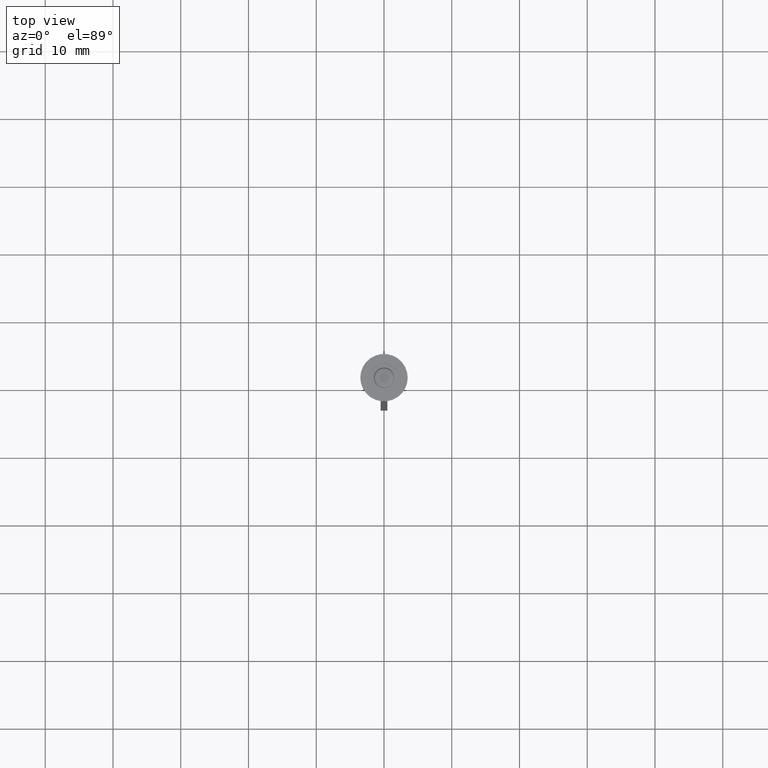
[diagram: clean part render]
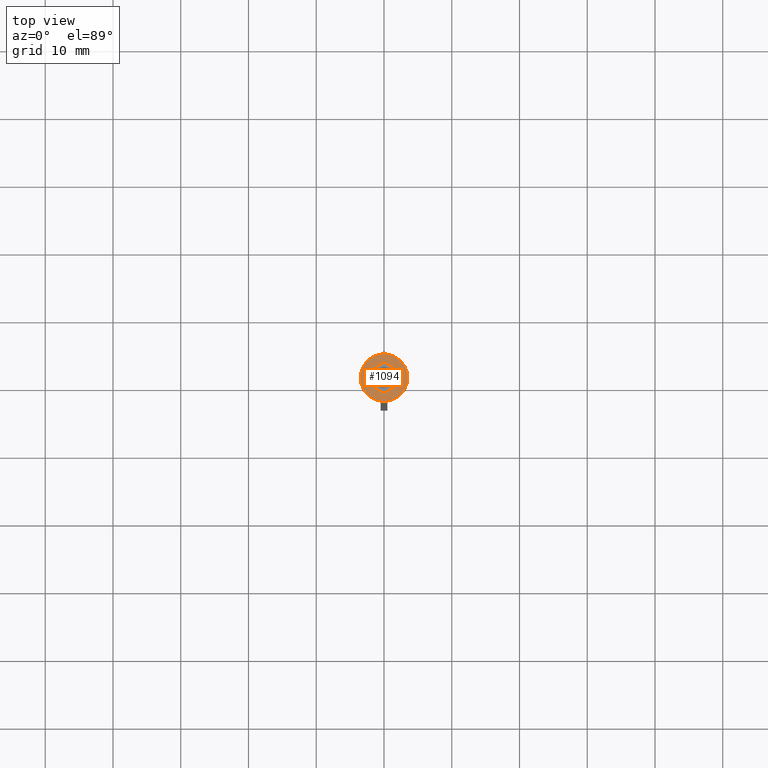
[diagram: same view with one face highlighted and labeled with its STEP entity id]
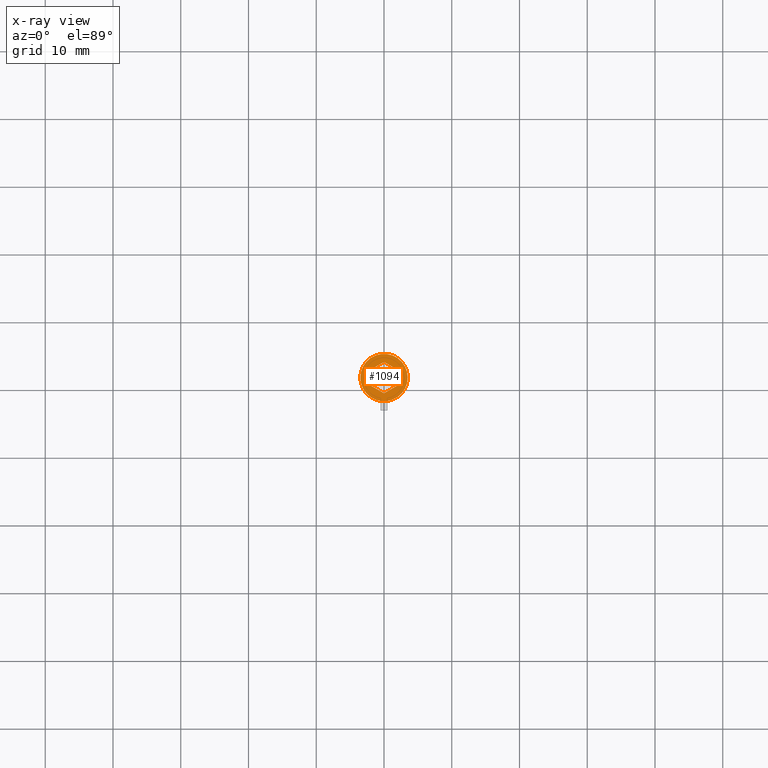
[diagram: x-ray of the same camera — body ghosted, the highlighted face saturated]
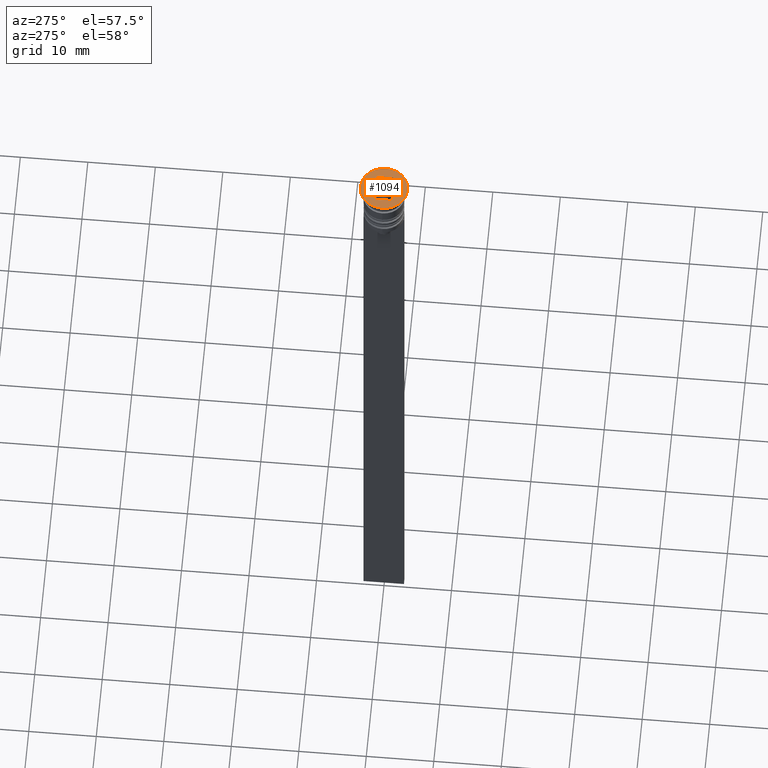
[diagram: same view with one face highlighted and labeled with its STEP entity id]
A machine part, top view. The second image highlights one B-rep face of the part: STEP entity #1094.
The next image is the same camera in x-ray: the body ghosted, the highlighted face saturated — about 0% of this face is hidden behind the body in this view.
A second angle (auxiliary view) of the same face is appended — the face is thin or edge-on in the first view.
In plain terms, the highlighted planar face has unit normal (0, -0, 1).
Its self-contained STEP definition (entity closure, byte-faithful):
#46 = PLANE ( 'NONE',  #655 ) ;
#99 = FACE_BOUND ( 'NONE', #1509, .T. ) ;
#105 = CARTESIAN_POINT ( 'NONE',  ( -2.168404344971008868E-16, 2.309401076758502480, 0.000000000000000000 ) ) ;
#143 = CARTESIAN_POINT ( 'NONE',  ( 2.000000000000000000, 1.154700538379251240, 0.000000000000000000 ) ) ;
#155 = ORIENTED_EDGE ( 'NONE', *, *, #265, .T. ) ;
#161 = AXIS2_PLACEMENT_3D ( 'NONE', #1878, #1348, #2061 ) ;
#175 = DIRECTION ( 'NONE',  ( -0.8660254037844387076, 0.4999999999999998890, 0.000000000000000000 ) ) ;
#187 = CARTESIAN_POINT ( 'NONE',  ( 0.000000000000000000, 2.309401076758502480, 0.000000000000000000 ) ) ;
#197 = LINE ( 'NONE', #1646, #658 ) ;
#202 = VERTEX_POINT ( 'NONE', #1136 ) ;
#265 = EDGE_CURVE ( 'NONE', #782, #2320, #2169, .T. ) ;
#267 = VERTEX_POINT ( 'NONE', #639 ) ;
#309 = LINE ( 'NONE', #143, #950 ) ;
#318 = CIRCLE ( 'NONE', #161, 3.500000000000000000 ) ;
#330 = ORIENTED_EDGE ( 'NONE', *, *, #528, .F. ) ;
#365 = ORIENTED_EDGE ( 'NONE', *, *, #1356, .F. ) ;
#376 = LINE ( 'NONE', #1310, #757 ) ;
#410 = LINE ( 'NONE', #1790, #687 ) ;
#519 = ORIENTED_EDGE ( 'NONE', *, *, #1554, .F. ) ;
#528 = EDGE_CURVE ( 'NONE', #1848, #2330, #376, .T. ) ;
#535 = DIRECTION ( 'NONE',  ( 0.8660254037844387076, -0.4999999999999997780, 0.000000000000000000 ) ) ;
#578 = DIRECTION ( 'NONE',  ( 0.000000000000000000, 1.000000000000000000, 0.000000000000000000 ) ) ;
#594 = CARTESIAN_POINT ( 'NONE',  ( 3.500000000000000000, 0.000000000000000000, 0.000000000000000000 ) ) ;
#604 = CARTESIAN_POINT ( 'NONE',  ( 3.997386383800531884E-16, -2.309401076758503368, 0.000000000000000000 ) ) ;
#633 = CARTESIAN_POINT ( 'NONE',  ( 0.000000000000000000, 0.000000000000000000, 0.000000000000000000 ) ) ;
#639 = CARTESIAN_POINT ( 'NONE',  ( 2.000000000000000000, 1.154700538379251240, 0.000000000000000000 ) ) ;
#655 = AXIS2_PLACEMENT_3D ( 'NONE', #633, #768, #1951 ) ;
#658 = VECTOR ( 'NONE', #1287, 1000.000000000000000 ) ;
#687 = VECTOR ( 'NONE', #578, 1000.000000000000000 ) ;
#757 = VECTOR ( 'NONE', #535, 1000.000000000000114 ) ;
#768 = DIRECTION ( 'NONE',  ( 0.000000000000000000, -0.000000000000000000, 1.000000000000000000 ) ) ;
#771 = VECTOR ( 'NONE', #2301, 1000.000000000000000 ) ;
#778 = DIRECTION ( 'NONE',  ( 0.8660254037844384856, 0.5000000000000001110, 0.000000000000000000 ) ) ;
#782 = VERTEX_POINT ( 'NONE', #1766 ) ;
#821 = CARTESIAN_POINT ( 'NONE',  ( 0.000000000000000000, 0.000000000000000000, 0.000000000000000000 ) ) ;
#927 = EDGE_CURVE ( 'NONE', #1800, #267, #410, .T. ) ;
#950 = VECTOR ( 'NONE', #175, 1000.000000000000000 ) ;
#1094 = ADVANCED_FACE ( 'NONE', ( #99, #2248 ), #46, .T. ) ;
#1102 = EDGE_CURVE ( 'NONE', #1473, #202, #1265, .T. ) ;
#1136 = CARTESIAN_POINT ( 'NONE',  ( -2.000000000000000000, 1.154700538379251018, 0.000000000000000000 ) ) ;
#1224 = VECTOR ( 'NONE', #778, 1000.000000000000227 ) ;
#1240 = ORIENTED_EDGE ( 'NONE', *, *, #1280, .F. ) ;
#1265 = LINE ( 'NONE', #187, #771 ) ;
#1280 = EDGE_CURVE ( 'NONE', #2330, #1800, #2038, .T. ) ;
#1287 = DIRECTION ( 'NONE',  ( 0.000000000000000000, -1.000000000000000000, 0.000000000000000000 ) ) ;
#1310 = CARTESIAN_POINT ( 'NONE',  ( -2.000000000000000000, -1.154700538379252128, 0.000000000000000000 ) ) ;
#1348 = DIRECTION ( 'NONE',  ( -0.000000000000000000, -0.000000000000000000, 1.000000000000000000 ) ) ;
#1356 = EDGE_CURVE ( 'NONE', #202, #1848, #197, .T. ) ;
#1384 = DIRECTION ( 'NONE',  ( 1.000000000000000000, 0.000000000000000000, 0.000000000000000000 ) ) ;
#1473 = VERTEX_POINT ( 'NONE', #105 ) ;
#1492 = CARTESIAN_POINT ( 'NONE',  ( 3.997386383800531884E-16, -2.309401076758503368, 0.000000000000000000 ) ) ;
#1509 = EDGE_LOOP ( 'NONE', ( #519, #2126, #1240, #330, #365, #2283 ) ) ;
#1547 = DIRECTION ( 'NONE',  ( -0.000000000000000000, -0.000000000000000000, 1.000000000000000000 ) ) ;
#1554 = EDGE_CURVE ( 'NONE', #267, #1473, #309, .T. ) ;
#1646 = CARTESIAN_POINT ( 'NONE',  ( -2.000000000000000000, 1.154700538379251018, 0.000000000000000000 ) ) ;
#1713 = CARTESIAN_POINT ( 'NONE',  ( -2.000000000000000000, -1.154700538379252128, 0.000000000000000000 ) ) ;
#1766 = CARTESIAN_POINT ( 'NONE',  ( -3.500000000000000000, 4.286263797015736595E-16, 0.000000000000000000 ) ) ;
#1790 = CARTESIAN_POINT ( 'NONE',  ( 2.000000000000000000, -1.154700538379251684, 0.000000000000000000 ) ) ;
#1800 = VERTEX_POINT ( 'NONE', #2218 ) ;
#1848 = VERTEX_POINT ( 'NONE', #1713 ) ;
#1878 = CARTESIAN_POINT ( 'NONE',  ( 0.000000000000000000, 0.000000000000000000, 0.000000000000000000 ) ) ;
#1901 = EDGE_CURVE ( 'NONE', #2320, #782, #318, .T. ) ;
#1951 = DIRECTION ( 'NONE',  ( 1.000000000000000000, 0.000000000000000000, 0.000000000000000000 ) ) ;
#2038 = LINE ( 'NONE', #1492, #1224 ) ;
#2058 = ORIENTED_EDGE ( 'NONE', *, *, #1901, .T. ) ;
#2061 = DIRECTION ( 'NONE',  ( 1.000000000000000000, 0.000000000000000000, 0.000000000000000000 ) ) ;
#2126 = ORIENTED_EDGE ( 'NONE', *, *, #927, .F. ) ;
#2129 = AXIS2_PLACEMENT_3D ( 'NONE', #821, #1547, #1384 ) ;
#2169 = CIRCLE ( 'NONE', #2129, 3.500000000000000000 ) ;
#2218 = CARTESIAN_POINT ( 'NONE',  ( 2.000000000000000000, -1.154700538379251684, 0.000000000000000000 ) ) ;
#2246 = EDGE_LOOP ( 'NONE', ( #2058, #155 ) ) ;
#2248 = FACE_OUTER_BOUND ( 'NONE', #2246, .T. ) ;
#2283 = ORIENTED_EDGE ( 'NONE', *, *, #1102, .F. ) ;
#2301 = DIRECTION ( 'NONE',  ( -0.8660254037844387076, -0.4999999999999999445, 0.000000000000000000 ) ) ;
#2320 = VERTEX_POINT ( 'NONE', #594 ) ;
#2330 = VERTEX_POINT ( 'NONE', #604 ) ;